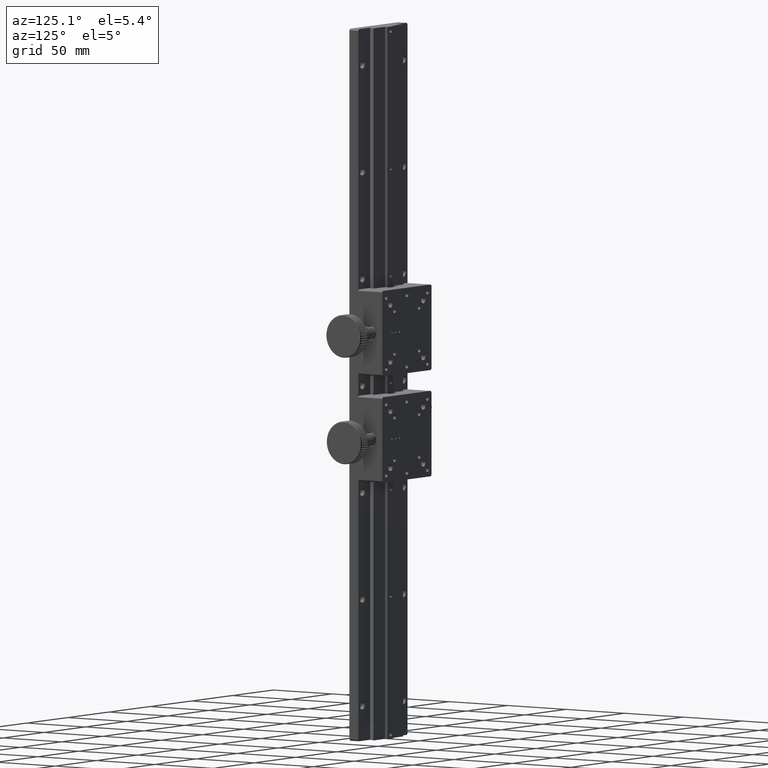
[diagram: clean part render]
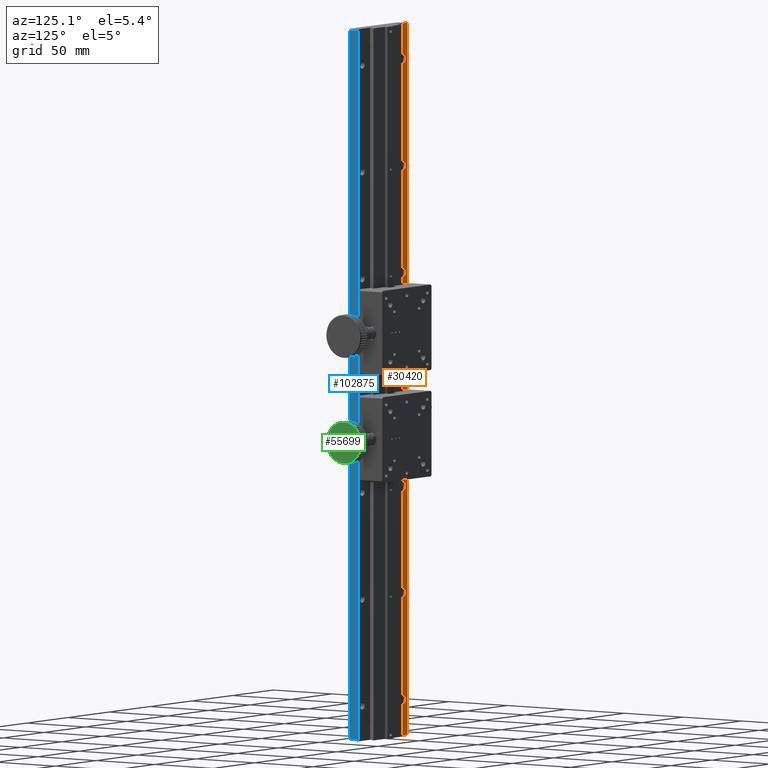
[diagram: same view with three faces highlighted in distinct colors, each labeled with its STEP entity id]
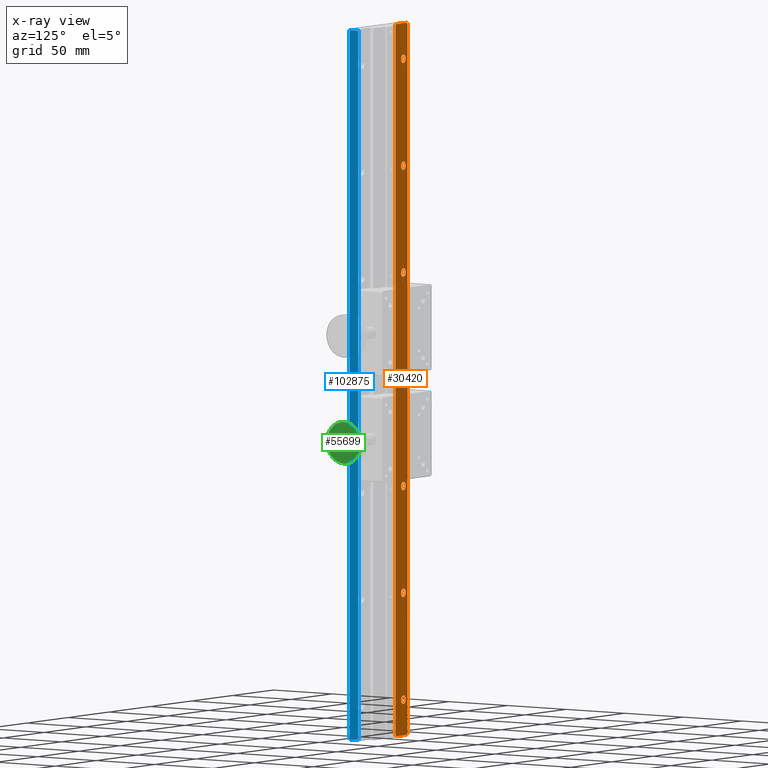
[diagram: x-ray of the same camera — body ghosted, the three highlighted faces saturated]
A machine part, auxiliary view with three faces highlighted in distinct colors.
The next image is the same camera in x-ray (body ghosted, the three faces saturated) — at least one of them is partly hidden behind the body in this view.
Their STEP definitions:

[orange] entity #30420 — the highlighted planar face has unit normal (0, -1, 0).
#2819 = CARTESIAN_POINT ( 'NONE',  ( 49.00156960994748800, 64.60272800986757602, 513.8231807833473113 ) ) ;
#3503 = CARTESIAN_POINT ( 'NONE',  ( 36.50156960994747379, 64.60272800986749075, 113.8231807833472544 ) ) ;
#4697 = ORIENTED_EDGE ( 'NONE', *, *, #169162, .T. ) ;
#5072 = EDGE_CURVE ( 'NONE', #186671, #186671, #182151, .T. ) ;
#9380 = CIRCLE ( 'NONE', #35490, 3.000000000000002665 ) ;
#10955 = CARTESIAN_POINT ( 'NONE',  ( 39.50156960994746669, 64.60272800986751918, 263.8231807833472544 ) ) ;
#12568 = DIRECTION ( 'NONE',  ( 1.000000000000000000, -0.000000000000000000, 0.000000000000000000 ) ) ;
#14750 = VERTEX_POINT ( 'NONE', #183852 ) ;
#16015 = DIRECTION ( 'NONE',  ( 1.000000000000000000, 7.222234881269275347E-15, 0.000000000000000000 ) ) ;
#18028 = CARTESIAN_POINT ( 'NONE',  ( 49.00156960994747379, 64.60272800986759023, 513.8231807833473113 ) ) ;
#18232 = VERTEX_POINT ( 'NONE', #74554 ) ;
#21140 = LINE ( 'NONE', #83574, #62835 ) ;
#21829 = DIRECTION ( 'NONE',  ( -6.982962677686266711E-15, 1.000000000000000000, 0.000000000000000000 ) ) ;
#23698 = CARTESIAN_POINT ( 'NONE',  ( 34.50156960994747379, 64.60272800986747654, 513.8231807833473113 ) ) ;
#25393 = EDGE_LOOP ( 'NONE', ( #29889 ) ) ;
#25883 = VERTEX_POINT ( 'NONE', #104660 ) ;
#26194 = DIRECTION ( 'NONE',  ( -0.7071067811865500152, -9.813077866772461680E-15, -0.7071067811865450192 ) ) ;
#26488 = CARTESIAN_POINT ( 'NONE',  ( 64.50156960994755195, 64.60272800986749075, 13.82318078334728284 ) ) ;
#26496 = VECTOR ( 'NONE', #12568, 1000.000000000000000 ) ;
#27779 = EDGE_CURVE ( 'NONE', #14750, #90267, #37035, .T. ) ;
#28495 = AXIS2_PLACEMENT_3D ( 'NONE', #10955, #42652, #73371 ) ;
#29158 = CARTESIAN_POINT ( 'NONE',  ( 39.50156960994745958, 64.60272800986751918, 488.8231807833473113 ) ) ;
#29889 = ORIENTED_EDGE ( 'NONE', *, *, #36648, .F. ) ;
#30353 = FACE_BOUND ( 'NONE', #122004, .T. ) ;
#30420 = ADVANCED_FACE ( 'NONE', ( #108121, #95769, #170562, #158206, #187879, #202241, #30353, #62089 ), #124493, .F. ) ;
#31597 = VECTOR ( 'NONE', #160873, 1000.000000000000000 ) ;
#32587 = CIRCLE ( 'NONE', #94655, 3.000000000000002665 ) ;
#35490 = AXIS2_PLACEMENT_3D ( 'NONE', #92601, #120287, #91593 ) ;
#36648 = EDGE_CURVE ( 'NONE', #100608, #100608, #9380, .T. ) ;
#37035 = LINE ( 'NONE', #23698, #31597 ) ;
#38216 = DIRECTION ( 'NONE',  ( -1.000000000000000000, -9.251858538542962756E-15, 0.000000000000000000 ) ) ;
#42508 = EDGE_CURVE ( 'NONE', #25883, #25883, #32587, .T. ) ;
#42652 = DIRECTION ( 'NONE',  ( -6.982962677686266711E-15, 1.000000000000000000, 0.000000000000000000 ) ) ;
#42730 = EDGE_LOOP ( 'NONE', ( #198058 ) ) ;
#44819 = CARTESIAN_POINT ( 'NONE',  ( 39.50156960994747379, 64.60272800986751918, 188.8231807833472544 ) ) ;
#46725 = DIRECTION ( 'NONE',  ( 7.222234881269275347E-15, -1.000000000000000000, 0.000000000000000000 ) ) ;
#47542 = DIRECTION ( 'NONE',  ( -1.000000000000000000, -9.251858538542962756E-15, 0.000000000000000000 ) ) ;
#49928 = ORIENTED_EDGE ( 'NONE', *, *, #27779, .T. ) ;
#53527 = CARTESIAN_POINT ( 'NONE',  ( 49.00156960994747379, 64.60272800986759023, 513.8231807833473113 ) ) ;
#54695 = AXIS2_PLACEMENT_3D ( 'NONE', #18028, #46725, #16015 ) ;
#54854 = ORIENTED_EDGE ( 'NONE', *, *, #111850, .F. ) ;
#56610 = CARTESIAN_POINT ( 'NONE',  ( 64.50156960994755195, 64.60272800986749075, 513.8231807833473113 ) ) ;
#59250 = EDGE_LOOP ( 'NONE', ( #129438 ) ) ;
#62089 = FACE_BOUND ( 'NONE', #25393, .T. ) ;
#62191 = DIRECTION ( 'NONE',  ( -6.982962677686266711E-15, 1.000000000000000000, 0.000000000000000000 ) ) ;
#62643 = VERTEX_POINT ( 'NONE', #125051 ) ;
#62835 = VECTOR ( 'NONE', #26194, 1000.000000000000000 ) ;
#64920 = VERTEX_POINT ( 'NONE', #202069 ) ;
#65790 = AXIS2_PLACEMENT_3D ( 'NONE', #129299, #21829, #38216 ) ;
#66332 = CIRCLE ( 'NONE', #125183, 3.000000000000002665 ) ;
#66684 = EDGE_CURVE ( 'NONE', #18232, #188434, #166694, .T. ) ;
#69300 = VECTOR ( 'NONE', #85212, 1000.000000000000000 ) ;
#70894 = CARTESIAN_POINT ( 'NONE',  ( 49.00156960994748800, 64.60272800986757602, 13.82318078334727041 ) ) ;
#71895 = EDGE_LOOP ( 'NONE', ( #128770 ) ) ;
#72918 = LINE ( 'NONE', #53527, #69300 ) ;
#72964 = EDGE_CURVE ( 'NONE', #62643, #62643, #171210, .T. ) ;
#73371 = DIRECTION ( 'NONE',  ( -1.000000000000000000, -9.251858538542962756E-15, 0.000000000000000000 ) ) ;
#73740 = CARTESIAN_POINT ( 'NONE',  ( 34.50156960994748800, 64.60272800986747654, 512.8231807833471976 ) ) ;
#74554 = CARTESIAN_POINT ( 'NONE',  ( 35.50156960994750222, 64.60272800986749075, 13.82318078334728639 ) ) ;
#78465 = ORIENTED_EDGE ( 'NONE', *, *, #5072, .F. ) ;
#79246 = DIRECTION ( 'NONE',  ( -6.982962677686266711E-15, 1.000000000000000000, 0.000000000000000000 ) ) ;
#79701 = ORIENTED_EDGE ( 'NONE', *, *, #175727, .T. ) ;
#80976 = EDGE_LOOP ( 'NONE', ( #78465 ) ) ;
#83574 = CARTESIAN_POINT ( 'NONE',  ( 35.50156960994759459, 64.60272800986749075, 513.8231807833473113 ) ) ;
#83724 = ORIENTED_EDGE ( 'NONE', *, *, #168370, .F. ) ;
#84978 = ORIENTED_EDGE ( 'NONE', *, *, #66684, .F. ) ;
#85212 = DIRECTION ( 'NONE',  ( -0.000000000000000000, -0.000000000000000000, -1.000000000000000000 ) ) ;
#88308 = LINE ( 'NONE', #56610, #26496 ) ;
#89609 = ORIENTED_EDGE ( 'NONE', *, *, #42508, .F. ) ;
#90267 = VERTEX_POINT ( 'NONE', #73740 ) ;
#90820 = VERTEX_POINT ( 'NONE', #155502 ) ;
#91593 = DIRECTION ( 'NONE',  ( -1.000000000000000000, -9.251858538542962756E-15, 0.000000000000000000 ) ) ;
#92601 = CARTESIAN_POINT ( 'NONE',  ( 39.50156960994746669, 64.60272800986751918, 413.8231807833473681 ) ) ;
#94655 = AXIS2_PLACEMENT_3D ( 'NONE', #154289, #62191, #202346 ) ;
#95769 = FACE_BOUND ( 'NONE', #59250, .T. ) ;
#100090 = EDGE_LOOP ( 'NONE', ( #83724 ) ) ;
#100608 = VERTEX_POINT ( 'NONE', #194733 ) ;
#101914 = EDGE_CURVE ( 'NONE', #14750, #18232, #114933, .T. ) ;
#104660 = CARTESIAN_POINT ( 'NONE',  ( 36.50156960994746669, 64.60272800986749075, 338.8231807833472544 ) ) ;
#106223 = DIRECTION ( 'NONE',  ( -1.000000000000000000, -9.251858538542962756E-15, 0.000000000000000000 ) ) ;
#108121 = FACE_OUTER_BOUND ( 'NONE', #191592, .T. ) ;
#108151 = CIRCLE ( 'NONE', #137519, 2.999999999999995559 ) ;
#111850 = EDGE_CURVE ( 'NONE', #90820, #90267, #21140, .T. ) ;
#111892 = ORIENTED_EDGE ( 'NONE', *, *, #101914, .F. ) ;
#114933 = LINE ( 'NONE', #163047, #165090 ) ;
#116971 = DIRECTION ( 'NONE',  ( 0.7071067811865525687, 9.813077866773518753E-15, -0.7071067811865425767 ) ) ;
#117956 = EDGE_CURVE ( 'NONE', #189951, #189951, #66332, .T. ) ;
#120287 = DIRECTION ( 'NONE',  ( -6.982962677686266711E-15, 1.000000000000000000, 0.000000000000000000 ) ) ;
#122004 = EDGE_LOOP ( 'NONE', ( #89609 ) ) ;
#124493 = PLANE ( 'NONE',  #54695 ) ;
#125051 = CARTESIAN_POINT ( 'NONE',  ( 36.50156960994747379, 64.60272800986749075, 188.8231807833472544 ) ) ;
#125183 = AXIS2_PLACEMENT_3D ( 'NONE', #29158, #79246, #47542 ) ;
#126291 = CARTESIAN_POINT ( 'NONE',  ( 36.50156960994746669, 64.60272800986749075, 263.8231807833472544 ) ) ;
#128770 = ORIENTED_EDGE ( 'NONE', *, *, #165817, .F. ) ;
#129299 = CARTESIAN_POINT ( 'NONE',  ( 39.50156960994747379, 64.60272800986751918, 113.8231807833472544 ) ) ;
#129438 = ORIENTED_EDGE ( 'NONE', *, *, #117956, .F. ) ;
#137519 = AXIS2_PLACEMENT_3D ( 'NONE', #138127, #200528, #187165 ) ;
#138127 = CARTESIAN_POINT ( 'NONE',  ( 39.50156960994747379, 64.60272800986751918, 38.82318078334728284 ) ) ;
#143899 = CARTESIAN_POINT ( 'NONE',  ( 36.50156960994745958, 64.60272800986749075, 488.8231807833473113 ) ) ;
#154289 = CARTESIAN_POINT ( 'NONE',  ( 39.50156960994746669, 64.60272800986751918, 338.8231807833472544 ) ) ;
#154347 = DIRECTION ( 'NONE',  ( 1.000000000000000000, -0.000000000000000000, 0.000000000000000000 ) ) ;
#155502 = CARTESIAN_POINT ( 'NONE',  ( 35.50156960994760169, 64.60272800986749075, 513.8231807833473113 ) ) ;
#156296 = DIRECTION ( 'NONE',  ( -6.982962677686266711E-15, 1.000000000000000000, 0.000000000000000000 ) ) ;
#158206 = FACE_BOUND ( 'NONE', #100090, .T. ) ;
#159727 = VECTOR ( 'NONE', #154347, 1000.000000000000000 ) ;
#160873 = DIRECTION ( 'NONE',  ( 0.000000000000000000, 0.000000000000000000, 1.000000000000000000 ) ) ;
#163047 = CARTESIAN_POINT ( 'NONE',  ( 34.50156960994747379, 64.60272800986747654, 14.82318078334732192 ) ) ;
#165090 = VECTOR ( 'NONE', #116971, 999.9999999999998863 ) ;
#165817 = EDGE_CURVE ( 'NONE', #64920, #64920, #108151, .T. ) ;
#166694 = LINE ( 'NONE', #26488, #159727 ) ;
#168370 = EDGE_CURVE ( 'NONE', #187706, #187706, #183370, .T. ) ;
#169162 = EDGE_CURVE ( 'NONE', #90820, #182317, #88308, .T. ) ;
#170562 = FACE_BOUND ( 'NONE', #71895, .T. ) ;
#171210 = CIRCLE ( 'NONE', #187524, 3.000000000000002665 ) ;
#175727 = EDGE_CURVE ( 'NONE', #182317, #188434, #72918, .T. ) ;
#182151 = CIRCLE ( 'NONE', #28495, 3.000000000000002665 ) ;
#182317 = VERTEX_POINT ( 'NONE', #2819 ) ;
#183370 = CIRCLE ( 'NONE', #65790, 3.000000000000002665 ) ;
#183852 = CARTESIAN_POINT ( 'NONE',  ( 34.50156960994750932, 64.60272800986747654, 14.82318078334725264 ) ) ;
#186671 = VERTEX_POINT ( 'NONE', #126291 ) ;
#187165 = DIRECTION ( 'NONE',  ( -1.000000000000000000, -9.251858538542984844E-15, 0.000000000000000000 ) ) ;
#187524 = AXIS2_PLACEMENT_3D ( 'NONE', #44819, #156296, #106223 ) ;
#187706 = VERTEX_POINT ( 'NONE', #3503 ) ;
#187879 = FACE_BOUND ( 'NONE', #42730, .T. ) ;
#188434 = VERTEX_POINT ( 'NONE', #70894 ) ;
#189951 = VERTEX_POINT ( 'NONE', #143899 ) ;
#191592 = EDGE_LOOP ( 'NONE', ( #111892, #49928, #54854, #4697, #79701, #84978 ) ) ;
#194733 = CARTESIAN_POINT ( 'NONE',  ( 36.50156960994746669, 64.60272800986749075, 413.8231807833473681 ) ) ;
#198058 = ORIENTED_EDGE ( 'NONE', *, *, #72964, .F. ) ;
#200528 = DIRECTION ( 'NONE',  ( -6.982962677686266711E-15, 1.000000000000000000, 0.000000000000000000 ) ) ;
#202069 = CARTESIAN_POINT ( 'NONE',  ( 36.50156960994748090, 64.60272800986749075, 38.82318078334728284 ) ) ;
#202241 = FACE_BOUND ( 'NONE', #80976, .T. ) ;
#202346 = DIRECTION ( 'NONE',  ( -1.000000000000000000, -9.251858538542962756E-15, 0.000000000000000000 ) ) ;

[blue] entity #102875 — the highlighted planar face has unit normal (-1, -0, 0).
#1765 = CARTESIAN_POINT ( 'NONE',  ( 94.50156960994749511, 64.60272800986791708, 263.9731807833472317 ) ) ;
#3088 = CARTESIAN_POINT ( 'NONE',  ( 94.50156960994752353, 60.10272800986790998, 263.9731807833472317 ) ) ;
#6110 = VERTEX_POINT ( 'NONE', #24956 ) ;
#6519 = CARTESIAN_POINT ( 'NONE',  ( 94.50156960994749511, 64.60272800986791708, 513.8231807833473113 ) ) ;
#6866 = CARTESIAN_POINT ( 'NONE',  ( 94.50156960994752353, 60.10272800986790998, 513.8231807833473113 ) ) ;
#7758 = DIRECTION ( 'NONE',  ( -6.982962677686266711E-15, 1.000000000000000000, -0.000000000000000000 ) ) ;
#8067 = VECTOR ( 'NONE', #7758, 1000.000000000000000 ) ;
#8414 = CARTESIAN_POINT ( 'NONE',  ( 94.50156960994752353, 57.10272800986790998, 512.8231807833471976 ) ) ;
#10011 = VERTEX_POINT ( 'NONE', #3088 ) ;
#19820 = EDGE_CURVE ( 'NONE', #132543, #6110, #57961, .T. ) ;
#22982 = VERTEX_POINT ( 'NONE', #8414 ) ;
#23226 = VECTOR ( 'NONE', #96856, 1000.000000000000000 ) ;
#24956 = CARTESIAN_POINT ( 'NONE',  ( 94.50156960994750932, 64.60272800986791708, 263.9731807833472317 ) ) ;
#25483 = VERTEX_POINT ( 'NONE', #167561 ) ;
#33964 = EDGE_CURVE ( 'NONE', #81610, #35056, #98862, .T. ) ;
#34521 = DIRECTION ( 'NONE',  ( 0.000000000000000000, -0.000000000000000000, -1.000000000000000000 ) ) ;
#35056 = VERTEX_POINT ( 'NONE', #124083 ) ;
#35862 = LINE ( 'NONE', #97251, #131454 ) ;
#45713 = DIRECTION ( 'NONE',  ( -6.982962677686266711E-15, 1.000000000000000000, -0.000000000000000000 ) ) ;
#47342 = VECTOR ( 'NONE', #53597, 1000.000000000000000 ) ;
#47827 = DIRECTION ( 'NONE',  ( 6.982962677686266711E-15, -1.000000000000000000, 0.000000000000000000 ) ) ;
#51235 = ORIENTED_EDGE ( 'NONE', *, *, #33964, .F. ) ;
#53597 = DIRECTION ( 'NONE',  ( 0.000000000000000000, -0.000000000000000000, -1.000000000000000000 ) ) ;
#54831 = CARTESIAN_POINT ( 'NONE',  ( 94.50156960994749511, 64.60272800986791708, 512.8231807833471976 ) ) ;
#56603 = PLANE ( 'NONE',  #76855 ) ;
#57371 = ORIENTED_EDGE ( 'NONE', *, *, #185764, .F. ) ;
#57739 = CARTESIAN_POINT ( 'NONE',  ( 94.50156960994749511, 64.60272800986791708, 263.6731807833472203 ) ) ;
#57961 = LINE ( 'NONE', #75319, #133377 ) ;
#59634 = DIRECTION ( 'NONE',  ( 6.982962677686266711E-15, -1.000000000000000000, 0.000000000000000000 ) ) ;
#62079 = LINE ( 'NONE', #108110, #138091 ) ;
#70289 = LINE ( 'NONE', #6866, #112324 ) ;
#75319 = CARTESIAN_POINT ( 'NONE',  ( 94.50156960994749511, 64.60272800986791708, 513.8231807833473113 ) ) ;
#76855 = AXIS2_PLACEMENT_3D ( 'NONE', #149691, #138386, #59634 ) ;
#79532 = LINE ( 'NONE', #1765, #181151 ) ;
#81610 = VERTEX_POINT ( 'NONE', #97531 ) ;
#85671 = EDGE_CURVE ( 'NONE', #22982, #132543, #195985, .T. ) ;
#93761 = EDGE_CURVE ( 'NONE', #10011, #25483, #70289, .T. ) ;
#96856 = DIRECTION ( 'NONE',  ( 6.982962677686266711E-15, -1.000000000000000000, 0.000000000000000000 ) ) ;
#97251 = CARTESIAN_POINT ( 'NONE',  ( 94.50156960994752353, 57.10272800986790998, 513.8231807833473113 ) ) ;
#97531 = CARTESIAN_POINT ( 'NONE',  ( 94.50156960994749511, 64.60272800986791708, 14.82318078334733968 ) ) ;
#98068 = ORIENTED_EDGE ( 'NONE', *, *, #85671, .F. ) ;
#98262 = DIRECTION ( 'NONE',  ( -0.000000000000000000, -0.000000000000000000, -1.000000000000000000 ) ) ;
#98862 = LINE ( 'NONE', #157285, #23226 ) ;
#99126 = EDGE_CURVE ( 'NONE', #193913, #81610, #99613, .T. ) ;
#99613 = LINE ( 'NONE', #6519, #47342 ) ;
#102875 = ADVANCED_FACE ( 'NONE', ( #105665 ), #56603, .F. ) ;
#105665 = FACE_OUTER_BOUND ( 'NONE', #108657, .T. ) ;
#108110 = CARTESIAN_POINT ( 'NONE',  ( 94.50156960994749511, 64.60272800986791708, 263.6731807833472203 ) ) ;
#108657 = EDGE_LOOP ( 'NONE', ( #57371, #150860, #146350, #193650, #98068, #165996, #51235, #185372 ) ) ;
#112324 = VECTOR ( 'NONE', #34521, 1000.000000000000000 ) ;
#112990 = EDGE_CURVE ( 'NONE', #22982, #35056, #35862, .T. ) ;
#122375 = DIRECTION ( 'NONE',  ( 0.000000000000000000, -0.000000000000000000, -1.000000000000000000 ) ) ;
#124083 = CARTESIAN_POINT ( 'NONE',  ( 94.50156960994752353, 57.10272800986790287, 14.82318078334727396 ) ) ;
#131454 = VECTOR ( 'NONE', #98262, 1000.000000000000000 ) ;
#132543 = VERTEX_POINT ( 'NONE', #192099 ) ;
#133377 = VECTOR ( 'NONE', #122375, 1000.000000000000000 ) ;
#138091 = VECTOR ( 'NONE', #45713, 1000.000000000000000 ) ;
#138386 = DIRECTION ( 'NONE',  ( -1.000000000000000000, -6.982962677686266711E-15, 0.000000000000000000 ) ) ;
#146350 = ORIENTED_EDGE ( 'NONE', *, *, #198266, .F. ) ;
#149691 = CARTESIAN_POINT ( 'NONE',  ( 94.50156960994749511, 64.60272800986791708, 513.8231807833473113 ) ) ;
#150860 = ORIENTED_EDGE ( 'NONE', *, *, #93761, .F. ) ;
#157285 = CARTESIAN_POINT ( 'NONE',  ( 94.50156960994749511, 64.60272800986791708, 14.82318078334732192 ) ) ;
#165996 = ORIENTED_EDGE ( 'NONE', *, *, #112990, .T. ) ;
#167561 = CARTESIAN_POINT ( 'NONE',  ( 94.50156960994752353, 60.10272800986790998, 263.6731807833472203 ) ) ;
#181151 = VECTOR ( 'NONE', #47827, 1000.000000000000000 ) ;
#185372 = ORIENTED_EDGE ( 'NONE', *, *, #99126, .F. ) ;
#185764 = EDGE_CURVE ( 'NONE', #25483, #193913, #62079, .T. ) ;
#192099 = CARTESIAN_POINT ( 'NONE',  ( 94.50156960994749511, 64.60272800986791708, 512.8231807833471976 ) ) ;
#193650 = ORIENTED_EDGE ( 'NONE', *, *, #19820, .F. ) ;
#193913 = VERTEX_POINT ( 'NONE', #57739 ) ;
#195985 = LINE ( 'NONE', #54831, #8067 ) ;
#198266 = EDGE_CURVE ( 'NONE', #6110, #10011, #79532, .T. ) ;

[green] entity #55699 — the highlighted planar face has unit normal (-1, 0, 0).
#158 = VERTEX_POINT ( 'NONE', #112832 ) ;
#201 = CARTESIAN_POINT ( 'NONE',  ( 126.9015696099511388, 88.79528928736395699, 231.5493539217077910 ) ) ;
#217 = CIRCLE ( 'NONE', #85216, 14.49999999999999822 ) ;
#282 = EDGE_CURVE ( 'NONE', #166472, #129989, #114465, .T. ) ;
#1010 = DIRECTION ( 'NONE',  ( -1.000000000000000000, 5.732958497158753929E-14, 6.753182598414590880E-15 ) ) ;
#3174 = EDGE_CURVE ( 'NONE', #33391, #118165, #55934, .T. ) ;
#3752 = VERTEX_POINT ( 'NONE', #35152 ) ;
#3842 = AXIS2_PLACEMENT_3D ( 'NONE', #44512, #9287, #33157 ) ;
#4657 = DIRECTION ( 'NONE',  ( -5.742532885992189612E-14, -1.000000000000000000, 0.000000000000000000 ) ) ;
#5063 = CARTESIAN_POINT ( 'NONE',  ( 126.9015696099499735, 67.46226522042978502, 238.7615722586857032 ) ) ;
#5613 = DIRECTION ( 'NONE',  ( -1.000000000000000000, 5.732958497158753929E-14, 6.753182598414590880E-15 ) ) ;
#6720 = VERTEX_POINT ( 'NONE', #151830 ) ;
#7393 = DIRECTION ( 'NONE',  ( -1.000000000000000000, 5.732958497158753929E-14, 6.753182598414590880E-15 ) ) ;
#7448 = CARTESIAN_POINT ( 'NONE',  ( 126.9015696099503288, 75.20270420091914332, 226.5004302079091758 ) ) ;
#7516 = ORIENTED_EDGE ( 'NONE', *, *, #81593, .F. ) ;
#8049 = EDGE_CURVE ( 'NONE', #6720, #33391, #9341, .T. ) ;
#8487 = CARTESIAN_POINT ( 'NONE',  ( 126.9015696099506414, 82.20319114051488896, 213.8022735460723993 ) ) ;
#8781 = EDGE_CURVE ( 'NONE', #123722, #55088, #140079, .T. ) ;
#9287 = DIRECTION ( 'NONE',  ( -1.000000000000000000, 5.732958497158753929E-14, 6.753182598414590880E-15 ) ) ;
#9341 = CIRCLE ( 'NONE', #77986, 14.49999999999999822 ) ;
#9390 = CARTESIAN_POINT ( 'NONE',  ( 126.9015696099503288, 75.20270420091914332, 226.5004302079091758 ) ) ;
#9761 = DIRECTION ( 'NONE',  ( -5.742532885992189612E-14, -1.000000000000000000, 0.000000000000000000 ) ) ;
#10273 = AXIS2_PLACEMENT_3D ( 'NONE', #49665, #113050, #93681 ) ;
#10294 = AXIS2_PLACEMENT_3D ( 'NONE', #165305, #181629, #9761 ) ;
#10400 = FACE_OUTER_BOUND ( 'NONE', #107671, .T. ) ;
#10479 = CARTESIAN_POINT ( 'NONE',  ( 126.9015696099503288, 75.20270420091914332, 226.5004302079091758 ) ) ;
#11548 = ORIENTED_EDGE ( 'NONE', *, *, #170020, .F. ) ;
#11865 = AXIS2_PLACEMENT_3D ( 'NONE', #97589, #163075, #178415 ) ;
#12274 = CARTESIAN_POINT ( 'NONE',  ( 126.9015696099503288, 75.20270420091914332, 226.5004302079091758 ) ) ;
#12311 = ORIENTED_EDGE ( 'NONE', *, *, #24297, .F. ) ;
#13871 = AXIS2_PLACEMENT_3D ( 'NONE', #188880, #109129, #110129 ) ;
#15769 = ORIENTED_EDGE ( 'NONE', *, *, #93475, .F. ) ;
#15815 = CIRCLE ( 'NONE', #107408, 14.49999999999999822 ) ;
#16522 = VERTEX_POINT ( 'NONE', #178309 ) ;
#17418 = CARTESIAN_POINT ( 'NONE',  ( 126.9015696099503288, 75.20270420091914332, 226.5004302079091758 ) ) ;
#18213 = CARTESIAN_POINT ( 'NONE',  ( 126.9015696099496040, 63.67731480042549208, 217.7018280935396604 ) ) ;
#18659 = CARTESIAN_POINT ( 'NONE',  ( 126.9015696099503572, 77.34357937895508428, 212.1593474917377762 ) ) ;
#19966 = ORIENTED_EDGE ( 'NONE', *, *, #130642, .F. ) ;
#20825 = CARTESIAN_POINT ( 'NONE',  ( 126.9015696099504709, 79.02471810892056681, 212.5132142702379383 ) ) ;
#20982 = EDGE_CURVE ( 'NONE', #95060, #123722, #87686, .T. ) ;
#21076 = DIRECTION ( 'NONE',  ( -1.000000000000000000, 5.732958497158753929E-14, 6.753182598414590880E-15 ) ) ;
#21614 = EDGE_CURVE ( 'NONE', #59147, #57344, #15815, .T. ) ;
#21882 = DIRECTION ( 'NONE',  ( -5.742532885992189612E-14, -1.000000000000000000, 0.000000000000000000 ) ) ;
#22663 = AXIS2_PLACEMENT_3D ( 'NONE', #189781, #190784, #64992 ) ;
#22689 = DIRECTION ( 'NONE',  ( -5.742532885992189612E-14, -1.000000000000000000, 0.000000000000000000 ) ) ;
#23635 = AXIS2_PLACEMENT_3D ( 'NONE', #63152, #78496, #187940 ) ;
#23780 = DIRECTION ( 'NONE',  ( -1.000000000000000000, 5.732958497158753929E-14, 6.753182598414590880E-15 ) ) ;
#24297 = EDGE_CURVE ( 'NONE', #65300, #39182, #71025, .T. ) ;
#24397 = AXIS2_PLACEMENT_3D ( 'NONE', #59570, #60573, #107606 ) ;
#25009 = VERTEX_POINT ( 'NONE', #102078 ) ;
#25620 = ORIENTED_EDGE ( 'NONE', *, *, #96152, .F. ) ;
#25837 = DIRECTION ( 'NONE',  ( -1.000000000000000000, 5.732958497158753929E-14, 6.753182598414590880E-15 ) ) ;
#26159 = ORIENTED_EDGE ( 'NONE', *, *, #51260, .F. ) ;
#26242 = CARTESIAN_POINT ( 'NONE',  ( 126.9015696099503288, 75.20270420091914332, 226.5004302079091758 ) ) ;
#26402 = ORIENTED_EDGE ( 'NONE', *, *, #162381, .F. ) ;
#26718 = CARTESIAN_POINT ( 'NONE',  ( 126.9015696099503288, 75.20270420091914332, 226.5004302079091758 ) ) ;
#26728 = CARTESIAN_POINT ( 'NONE',  ( 126.9015696099503288, 75.20270420091914332, 226.5004302079091758 ) ) ;
#26740 = CIRCLE ( 'NONE', #134545, 14.49999999999999822 ) ;
#26746 = DIRECTION ( 'NONE',  ( -1.000000000000000000, 5.732958497158753929E-14, 6.753182598414590880E-15 ) ) ;
#26780 = DIRECTION ( 'NONE',  ( -1.000000000000000000, 5.732958497158753929E-14, 6.753182598414590880E-15 ) ) ;
#27834 = VERTEX_POINT ( 'NONE', #161891 ) ;
#27927 = CARTESIAN_POINT ( 'NONE',  ( 126.9015696099501724, 73.91516371873655089, 212.0577074899885304 ) ) ;
#28537 = ORIENTED_EDGE ( 'NONE', *, *, #106893, .F. ) ;
#28614 = DIRECTION ( 'NONE',  ( -1.000000000000000000, 5.732958497158753929E-14, 6.753182598414590880E-15 ) ) ;
#28767 = DIRECTION ( 'NONE',  ( -1.000000000000000000, 5.732958497158753929E-14, 6.753182598414590880E-15 ) ) ;
#29183 = EDGE_CURVE ( 'NONE', #46490, #120400, #155910, .T. ) ;
#29419 = DIRECTION ( 'NONE',  ( -5.742532885992189612E-14, -1.000000000000000000, 0.000000000000000000 ) ) ;
#29937 = CARTESIAN_POINT ( 'NONE',  ( 126.9015696099495329, 60.93136082067898940, 229.0653391971865744 ) ) ;
#29939 = CIRCLE ( 'NONE', #124774, 14.49999999999999822 ) ;
#29973 = CIRCLE ( 'NONE', #3842, 14.49999999999999822 ) ;
#30055 = VERTEX_POINT ( 'NONE', #79443 ) ;
#30787 = CARTESIAN_POINT ( 'NONE',  ( 126.9015696099503288, 75.20270420091914332, 226.5004302079091758 ) ) ;
#31082 = ORIENTED_EDGE ( 'NONE', *, *, #29183, .F. ) ;
#32848 = EDGE_CURVE ( 'NONE', #27834, #76685, #144003, .T. ) ;
#33107 = ORIENTED_EDGE ( 'NONE', *, *, #282, .F. ) ;
#33157 = DIRECTION ( 'NONE',  ( -5.742532885992189612E-14, -1.000000000000000000, 0.000000000000000000 ) ) ;
#33391 = VERTEX_POINT ( 'NONE', #64176 ) ;
#33709 = AXIS2_PLACEMENT_3D ( 'NONE', #187945, #110189, #29419 ) ;
#34149 = DIRECTION ( 'NONE',  ( -5.742532885992189612E-14, -1.000000000000000000, 0.000000000000000000 ) ) ;
#34430 = CARTESIAN_POINT ( 'NONE',  ( 126.9015696099495045, 61.33488992890952574, 222.2656070336731204 ) ) ;
#34524 = DIRECTION ( 'NONE',  ( -5.742532885992189612E-14, -1.000000000000000000, 0.000000000000000000 ) ) ;
#34694 = ORIENTED_EDGE ( 'NONE', *, *, #176652, .F. ) ;
#34705 = CARTESIAN_POINT ( 'NONE',  ( 126.9015696099503288, 75.20270420091914332, 226.5004302079091758 ) ) ;
#35152 = CARTESIAN_POINT ( 'NONE',  ( 126.9015696099495756, 61.33488992890961811, 230.7352533821454585 ) ) ;
#35412 = CARTESIAN_POINT ( 'NONE',  ( 126.9015696099503288, 75.20270420091914332, 226.5004302079091758 ) ) ;
#35520 = CARTESIAN_POINT ( 'NONE',  ( 126.9015696099503288, 75.20270420091914332, 226.5004302079091758 ) ) ;
#36219 = VERTEX_POINT ( 'NONE', #18213 ) ;
#36376 = CIRCLE ( 'NONE', #42985, 14.49999999999999822 ) ;
#36402 = CIRCLE ( 'NONE', #10294, 14.49999999999999822 ) ;
#36532 = CIRCLE ( 'NONE', #128102, 14.49999999999999822 ) ;
#38464 = DIRECTION ( 'NONE',  ( -1.000000000000000000, 5.732958497158753929E-14, 6.753182598414590880E-15 ) ) ;
#38811 = DIRECTION ( 'NONE',  ( -1.000000000000000000, 5.732958497158753929E-14, 6.753182598414590880E-15 ) ) ;
#39182 = VERTEX_POINT ( 'NONE', #29937 ) ;
#39324 = EDGE_CURVE ( 'NONE', #168604, #107390, #127077, .T. ) ;
#39338 = DIRECTION ( 'NONE',  ( -5.742532885992189612E-14, -1.000000000000000000, 0.000000000000000000 ) ) ;
#39780 = AXIS2_PLACEMENT_3D ( 'NONE', #106916, #47533, #59883 ) ;
#40081 = CARTESIAN_POINT ( 'NONE',  ( 126.9015696099503288, 75.20270420091914332, 226.5004302079091758 ) ) ;
#40468 = AXIS2_PLACEMENT_3D ( 'NONE', #163269, #145846, #190887 ) ;
#41050 = CIRCLE ( 'NONE', #155443, 14.49999999999999822 ) ;
#41434 = AXIS2_PLACEMENT_3D ( 'NONE', #17418, #95157, #64484 ) ;
#41981 = CIRCLE ( 'NONE', #185677, 14.49999999999999822 ) ;
#42281 = CIRCLE ( 'NONE', #140271, 14.49999999999999822 ) ;
#42985 = AXIS2_PLACEMENT_3D ( 'NONE', #7448, #69861, #132257 ) ;
#43137 = AXIS2_PLACEMENT_3D ( 'NONE', #26242, #147017, #163420 ) ;
#44409 = ORIENTED_EDGE ( 'NONE', *, *, #39324, .F. ) ;
#44512 = CARTESIAN_POINT ( 'NONE',  ( 126.9015696099503288, 75.20270420091914332, 226.5004302079091758 ) ) ;
#44742 = CARTESIAN_POINT ( 'NONE',  ( 126.9015696099511388, 88.10273202034305484, 233.1215541501178734 ) ) ;
#45659 = ORIENTED_EDGE ( 'NONE', *, *, #105400, .F. ) ;
#45948 = CIRCLE ( 'NONE', #160283, 14.49999999999999822 ) ;
#46071 = AXIS2_PLACEMENT_3D ( 'NONE', #67152, #38464, #113174 ) ;
#46139 = CARTESIAN_POINT ( 'NONE',  ( 126.9015696099503288, 75.20270420091914332, 226.5004302079091758 ) ) ;
#46156 = DIRECTION ( 'NONE',  ( -1.000000000000000000, 5.732958497158753929E-14, 6.753182598414590880E-15 ) ) ;
#46470 = VERTEX_POINT ( 'NONE', #114602 ) ;
#46490 = VERTEX_POINT ( 'NONE', #148349 ) ;
#46813 = VERTEX_POINT ( 'NONE', #136046 ) ;
#47074 = DIRECTION ( 'NONE',  ( -5.742532885992189612E-14, -1.000000000000000000, 0.000000000000000000 ) ) ;
#47533 = DIRECTION ( 'NONE',  ( -1.000000000000000000, 5.732958497158753929E-14, 6.753182598414590880E-15 ) ) ;
#47677 = ORIENTED_EDGE ( 'NONE', *, *, #81480, .F. ) ;
#47727 = DIRECTION ( 'NONE',  ( -5.742532885992189612E-14, -1.000000000000000000, 0.000000000000000000 ) ) ;
#47920 = VERTEX_POINT ( 'NONE', #5063 ) ;
#48247 = CARTESIAN_POINT ( 'NONE',  ( 126.9015696099509114, 86.18661721226261818, 217.0345094941465618 ) ) ;
#49665 = CARTESIAN_POINT ( 'NONE',  ( 126.9015696099503288, 75.20270420091914332, 226.5004302079091758 ) ) ;
#49746 = CARTESIAN_POINT ( 'NONE',  ( 126.9015696099498030, 64.79884897377644393, 236.6004201293227140 ) ) ;
#51260 = EDGE_CURVE ( 'NONE', #158, #166472, #42281, .T. ) ;
#51505 = DIRECTION ( 'NONE',  ( -5.742532885992189612E-14, -1.000000000000000000, 0.000000000000000000 ) ) ;
#51698 = EDGE_CURVE ( 'NONE', #72647, #125760, #189320, .T. ) ;
#51788 = DIRECTION ( 'NONE',  ( -1.000000000000000000, 5.732958497158753929E-14, 6.753182598414590880E-15 ) ) ;
#52298 = DIRECTION ( 'NONE',  ( -5.742532885992189612E-14, -1.000000000000000000, 0.000000000000000000 ) ) ;
#52424 = CARTESIAN_POINT ( 'NONE',  ( 126.9015696099503288, 75.20270420091914332, 226.5004302079091758 ) ) ;
#52887 = CIRCLE ( 'NONE', #150910, 14.49999999999999822 ) ;
#52916 = AXIS2_PLACEMENT_3D ( 'NONE', #141980, #145995, #34524 ) ;
#53253 = CARTESIAN_POINT ( 'NONE',  ( 126.9015696099498882, 66.06643046898442151, 237.7600262173208989 ) ) ;
#53448 = DIRECTION ( 'NONE',  ( -1.000000000000000000, 5.732958497158753929E-14, 6.753182598414590880E-15 ) ) ;
#54439 = DIRECTION ( 'NONE',  ( -1.000000000000000000, 5.732958497158753929E-14, 6.753182598414590880E-15 ) ) ;
#54467 = DIRECTION ( 'NONE',  ( -5.742532885992189612E-14, -1.000000000000000000, 0.000000000000000000 ) ) ;
#55088 = VERTEX_POINT ( 'NONE', #18659 ) ;
#55426 = DIRECTION ( 'NONE',  ( -1.000000000000000000, 5.732958497158753929E-14, 6.753182598414590880E-15 ) ) ;
#55699 = ADVANCED_FACE ( 'NONE', ( #10400 ), #199638, .F. ) ;
#55849 = AXIS2_PLACEMENT_3D ( 'NONE', #71465, #100114, #162561 ) ;
#55934 = CIRCLE ( 'NONE', #140908, 14.49999999999999822 ) ;
#56267 = AXIS2_PLACEMENT_3D ( 'NONE', #102375, #70692, #52298 ) ;
#56535 = DIRECTION ( 'NONE',  ( -5.742532885992189612E-14, -1.000000000000000000, 0.000000000000000000 ) ) ;
#57344 = VERTEX_POINT ( 'NONE', #62912 ) ;
#58193 = EDGE_CURVE ( 'NONE', #3752, #148846, #96826, .T. ) ;
#58485 = CARTESIAN_POINT ( 'NONE',  ( 126.9015696099503288, 75.20270420091912911, 226.5004302079091758 ) ) ;
#58598 = ORIENTED_EDGE ( 'NONE', *, *, #185889, .F. ) ;
#59147 = VERTEX_POINT ( 'NONE', #27927 ) ;
#59570 = CARTESIAN_POINT ( 'NONE',  ( 126.9015696099503288, 75.20270420091914332, 226.5004302079091758 ) ) ;
#59779 = VERTEX_POINT ( 'NONE', #154770 ) ;
#59883 = DIRECTION ( 'NONE',  ( -5.742532885992189612E-14, -1.000000000000000000, 0.000000000000000000 ) ) ;
#60067 = CIRCLE ( 'NONE', #13871, 14.49999999999999822 ) ;
#60499 = DIRECTION ( 'NONE',  ( -5.742532885992189612E-14, -1.000000000000000000, 0.000000000000000000 ) ) ;
#60573 = DIRECTION ( 'NONE',  ( -1.000000000000000000, 5.732958497158753929E-14, 6.753182598414590880E-15 ) ) ;
#60991 = DIRECTION ( 'NONE',  ( -5.742532885992189612E-14, -1.000000000000000000, 0.000000000000000000 ) ) ;
#61759 = EDGE_CURVE ( 'NONE', #176339, #25009, #194535, .T. ) ;
#62912 = CARTESIAN_POINT ( 'NONE',  ( 126.9015696099500587, 72.21601422917316881, 212.3113610695663453 ) ) ;
#63152 = CARTESIAN_POINT ( 'NONE',  ( 126.9015696099503288, 75.20270420091914332, 226.5004302079091758 ) ) ;
#64176 = CARTESIAN_POINT ( 'NONE',  ( 126.9015696099511672, 89.60093009311515289, 228.2153911862687607 ) ) ;
#64369 = EDGE_CURVE ( 'NONE', #129989, #16522, #41050, .T. ) ;
#64484 = DIRECTION ( 'NONE',  ( -5.742532885992189612E-14, -1.000000000000000000, 0.000000000000000000 ) ) ;
#64593 = CARTESIAN_POINT ( 'NONE',  ( 126.9015696099503288, 75.20270420091914332, 226.5004302079091758 ) ) ;
#64896 = EDGE_CURVE ( 'NONE', #78696, #113926, #191682, .T. ) ;
#64992 = DIRECTION ( 'NONE',  ( -5.742532885992189612E-14, -1.000000000000000000, 0.000000000000000000 ) ) ;
#65300 = VERTEX_POINT ( 'NONE', #140216 ) ;
#65872 = CARTESIAN_POINT ( 'NONE',  ( 126.9015696099495329, 61.93309275089532662, 220.6551404832336800 ) ) ;
#66081 = VERTEX_POINT ( 'NONE', #86893 ) ;
#67152 = CARTESIAN_POINT ( 'NONE',  ( 126.9015696099503288, 75.20270420091914332, 226.5004302079091758 ) ) ;
#69861 = DIRECTION ( 'NONE',  ( -1.000000000000000000, 5.732958497158753929E-14, 6.753182598414590880E-15 ) ) ;
#69883 = VERTEX_POINT ( 'NONE', #169237 ) ;
#70155 = CIRCLE ( 'NONE', #24397, 14.49999999999999822 ) ;
#70692 = DIRECTION ( 'NONE',  ( -1.000000000000000000, 5.732958497158753929E-14, 6.753182598414590880E-15 ) ) ;
#71025 = CIRCLE ( 'NONE', #185384, 14.49999999999999822 ) ;
#71465 = CARTESIAN_POINT ( 'NONE',  ( 126.9015696099503288, 75.20270420091914332, 226.5004302079091758 ) ) ;
#72647 = VERTEX_POINT ( 'NONE', #186840 ) ;
#73265 = ORIENTED_EDGE ( 'NONE', *, *, #32848, .F. ) ;
#73531 = CARTESIAN_POINT ( 'NONE',  ( 126.9015696099511672, 89.70270420091914332, 226.5004302079091758 ) ) ;
#73629 = CARTESIAN_POINT ( 'NONE',  ( 126.9015696099508830, 83.65590664807909604, 238.2814899389914558 ) ) ;
#73818 = DIRECTION ( 'NONE',  ( -5.742532885992189612E-14, -1.000000000000000000, 0.000000000000000000 ) ) ;
#73931 = VERTEX_POINT ( 'NONE', #97296 ) ;
#74687 = DIRECTION ( 'NONE',  ( -5.742532885992189612E-14, -1.000000000000000000, 0.000000000000000000 ) ) ;
#75976 = CARTESIAN_POINT ( 'NONE',  ( 126.9015696099496040, 61.93309275089539767, 232.3457199325848705 ) ) ;
#76379 = VERTEX_POINT ( 'NONE', #110363 ) ;
#76685 = VERTEX_POINT ( 'NONE', #143062 ) ;
#77712 = ORIENTED_EDGE ( 'NONE', *, *, #117989, .F. ) ;
#77986 = AXIS2_PLACEMENT_3D ( 'NONE', #9390, #193567, #178243 ) ;
#78388 = ORIENTED_EDGE ( 'NONE', *, *, #58193, .F. ) ;
#78496 = DIRECTION ( 'NONE',  ( -1.000000000000000000, 5.732958497158753929E-14, 6.753182598414590880E-15 ) ) ;
#78696 = VERTEX_POINT ( 'NONE', #91767 ) ;
#79394 = DIRECTION ( 'NONE',  ( -1.000000000000000000, 5.732958497158753929E-14, 6.753182598414590880E-15 ) ) ;
#79443 = CARTESIAN_POINT ( 'NONE',  ( 126.9015696099505561, 77.34357937895525481, 240.8415129240805186 ) ) ;
#79594 = AXIS2_PLACEMENT_3D ( 'NONE', #40081, #54439, #162892 ) ;
#79776 = CARTESIAN_POINT ( 'NONE',  ( 126.9015696099503288, 75.20270420091914332, 226.5004302079091758 ) ) ;
#80199 = CIRCLE ( 'NONE', #135714, 14.49999999999999822 ) ;
#81480 = EDGE_CURVE ( 'NONE', #69883, #153505, #80199, .T. ) ;
#81593 = EDGE_CURVE ( 'NONE', #55088, #66081, #99757, .T. ) ;
#82222 = DIRECTION ( 'NONE',  ( -1.000000000000000000, 5.732958497158753929E-14, 6.753182598414590880E-15 ) ) ;
#82408 = DIRECTION ( 'NONE',  ( -1.000000000000000000, 5.732958497158753929E-14, 6.753182598414590880E-15 ) ) ;
#82619 = ORIENTED_EDGE ( 'NONE', *, *, #8049, .F. ) ;
#83505 = DIRECTION ( 'NONE',  ( -5.742532885992189612E-14, -1.000000000000000000, 0.000000000000000000 ) ) ;
#84150 = ORIENTED_EDGE ( 'NONE', *, *, #105629, .F. ) ;
#84314 = DIRECTION ( 'NONE',  ( -1.000000000000000000, 5.732958497158753929E-14, 6.753182598414590880E-15 ) ) ;
#84539 = ORIENTED_EDGE ( 'NONE', *, *, #167106, .F. ) ;
#85216 = AXIS2_PLACEMENT_3D ( 'NONE', #35412, #51788, #97818 ) ;
#86029 = CIRCLE ( 'NONE', #200392, 14.49999999999999822 ) ;
#86160 = CIRCLE ( 'NONE', #109107, 14.49999999999999822 ) ;
#86201 = CIRCLE ( 'NONE', #164662, 14.49999999999999822 ) ;
#86290 = ORIENTED_EDGE ( 'NONE', *, *, #182452, .F. ) ;
#86893 = CARTESIAN_POINT ( 'NONE',  ( 126.9015696099502435, 75.63238745434620114, 212.0067980785316308 ) ) ;
#87136 = DIRECTION ( 'NONE',  ( -5.803690861228005815E-14, -1.000000000000000000, 0.000000000000000000 ) ) ;
#87686 = CIRCLE ( 'NONE', #189012, 14.49999999999999822 ) ;
#87975 = AXIS2_PLACEMENT_3D ( 'NONE', #123444, #79394, #94727 ) ;
#88266 = DIRECTION ( 'NONE',  ( -5.742532885992189612E-14, -1.000000000000000000, 0.000000000000000000 ) ) ;
#88692 = CIRCLE ( 'NONE', #173562, 14.49999999999999822 ) ;
#89199 = DIRECTION ( 'NONE',  ( -5.742532885992189612E-14, -1.000000000000000000, 0.000000000000000000 ) ) ;
#89384 = CIRCLE ( 'NONE', #79594, 14.49999999999999822 ) ;
#91767 = CARTESIAN_POINT ( 'NONE',  ( 126.9015696099497461, 63.67731480042557024, 235.2990323222788902 ) ) ;
#93475 = EDGE_CURVE ( 'NONE', #107390, #76379, #86201, .T. ) ;
#93681 = DIRECTION ( 'NONE',  ( -5.742532885992189612E-14, -1.000000000000000000, 0.000000000000000000 ) ) ;
#94267 = DIRECTION ( 'NONE',  ( -1.000000000000000000, 5.732958497158753929E-14, 6.753182598414590880E-15 ) ) ;
#94713 = VERTEX_POINT ( 'NONE', #137740 ) ;
#94727 = DIRECTION ( 'NONE',  ( -5.742532885992189612E-14, -1.000000000000000000, 0.000000000000000000 ) ) ;
#94784 = ORIENTED_EDGE ( 'NONE', *, *, #159956, .F. ) ;
#95060 = VERTEX_POINT ( 'NONE', #145335 ) ;
#95157 = DIRECTION ( 'NONE',  ( -1.000000000000000000, 5.732958497158753929E-14, 6.753182598414590880E-15 ) ) ;
#95256 = CIRCLE ( 'NONE', #134405, 14.49999999999999822 ) ;
#95847 = ORIENTED_EDGE ( 'NONE', *, *, #184221, .F. ) ;
#96152 = EDGE_CURVE ( 'NONE', #143371, #95060, #187678, .T. ) ;
#96826 = CIRCLE ( 'NONE', #11865, 14.49999999999999822 ) ;
#97296 = CARTESIAN_POINT ( 'NONE',  ( 126.9015696099502435, 72.21601422917333934, 240.6894993462520063 ) ) ;
#97471 = DIRECTION ( 'NONE',  ( -5.742532885992189612E-14, -1.000000000000000000, 0.000000000000000000 ) ) ;
#97589 = CARTESIAN_POINT ( 'NONE',  ( 126.9015696099503288, 75.20270420091914332, 226.5004302079091758 ) ) ;
#97818 = DIRECTION ( 'NONE',  ( -5.742532885992189612E-14, -1.000000000000000000, 0.000000000000000000 ) ) ;
#99038 = CIRCLE ( 'NONE', #125217, 14.49999999999999822 ) ;
#99522 = CARTESIAN_POINT ( 'NONE',  ( 126.9015696099503288, 75.20270420091914332, 226.5004302079091758 ) ) ;
#99639 = ORIENTED_EDGE ( 'NONE', *, *, #119101, .F. ) ;
#99757 = CIRCLE ( 'NONE', #125911, 14.49999999999999822 ) ;
#100114 = DIRECTION ( 'NONE',  ( -1.000000000000000000, 5.732958497158753929E-14, 6.753182598414590880E-15 ) ) ;
#100375 = AXIS2_PLACEMENT_3D ( 'NONE', #193892, #82408, #4657 ) ;
#101468 = CARTESIAN_POINT ( 'NONE',  ( 126.9015696099503288, 75.20270420091914332, 226.5004302079091758 ) ) ;
#102078 = CARTESIAN_POINT ( 'NONE',  ( 126.9015696099508261, 84.98995772293314133, 215.8018476618040893 ) ) ;
#102093 = ORIENTED_EDGE ( 'NONE', *, *, #110231, .F. ) ;
#102123 = AXIS2_PLACEMENT_3D ( 'NONE', #185867, #111122, #47727 ) ;
#102375 = CARTESIAN_POINT ( 'NONE',  ( 126.9015696099503288, 75.20270420091914332, 226.5004302079091758 ) ) ;
#104919 = AXIS2_PLACEMENT_3D ( 'NONE', #64593, #94267, #156702 ) ;
#105400 = EDGE_CURVE ( 'NONE', #94713, #27834, #165250, .T. ) ;
#105629 = EDGE_CURVE ( 'NONE', #16522, #176339, #36376, .T. ) ;
#106893 = EDGE_CURVE ( 'NONE', #59779, #159524, #157328, .T. ) ;
#106916 = CARTESIAN_POINT ( 'NONE',  ( 126.9015696099503288, 75.20270420091914332, 226.5004302079091758 ) ) ;
#107275 = EDGE_CURVE ( 'NONE', #153505, #112313, #88692, .T. ) ;
#107390 = VERTEX_POINT ( 'NONE', #165200 ) ;
#107408 = AXIS2_PLACEMENT_3D ( 'NONE', #154598, #26746, #153593 ) ;
#107606 = DIRECTION ( 'NONE',  ( -5.742532885992189612E-14, -1.000000000000000000, 0.000000000000000000 ) ) ;
#107671 = EDGE_LOOP ( 'NONE', ( #11548, #197478, #82619, #170592, #148165, #132536, #147339, #47677, #127481, #172367, #73265, #45659, #139812, #77712, #141121, #94784, #172736, #28537, #160531, #169832, #160502, #137093, #86290, #140906, #78388, #19966, #12311, #118145, #99639, #200951, #34694, #164797, #196764, #95847, #31082, #26402, #15769, #44409, #84539, #182550, #168583, #7516, #161977, #165049, #25620, #58598, #102093, #143600, #84150, #200935, #33107, #26159, #187639 ) ) ;
#108418 = AXIS2_PLACEMENT_3D ( 'NONE', #158123, #5613, #142738 ) ;
#109107 = AXIS2_PLACEMENT_3D ( 'NONE', #79776, #1010, #144170 ) ;
#109129 = DIRECTION ( 'NONE',  ( -1.000000000000000000, 5.732958497158753929E-14, 6.753182598414590880E-15 ) ) ;
#109415 = EDGE_CURVE ( 'NONE', #159524, #73931, #154124, .T. ) ;
#109530 = EDGE_CURVE ( 'NONE', #46470, #158, #26740, .T. ) ;
#110129 = DIRECTION ( 'NONE',  ( -5.742532885992189612E-14, -1.000000000000000000, 0.000000000000000000 ) ) ;
#110189 = DIRECTION ( 'NONE',  ( -1.000000000000000000, 5.732958497158753929E-14, 6.753182598414590880E-15 ) ) ;
#110231 = EDGE_CURVE ( 'NONE', #25009, #199250, #52887, .T. ) ;
#110363 = CARTESIAN_POINT ( 'NONE',  ( 126.9015696099498030, 67.46226522042960028, 214.2392881571327337 ) ) ;
#110549 = EDGE_CURVE ( 'NONE', #66081, #59147, #29939, .T. ) ;
#111122 = DIRECTION ( 'NONE',  ( -1.000000000000000000, 5.732958497158753929E-14, 6.753182598414590880E-15 ) ) ;
#112313 = VERTEX_POINT ( 'NONE', #197068 ) ;
#112832 = CARTESIAN_POINT ( 'NONE',  ( 126.9015696099511388, 89.29703645508509169, 223.0945825440849148 ) ) ;
#113050 = DIRECTION ( 'NONE',  ( -1.000000000000000000, 5.732958497158753929E-14, 6.753182598414590880E-15 ) ) ;
#113174 = DIRECTION ( 'NONE',  ( -5.742532885992189612E-14, -1.000000000000000000, 0.000000000000000000 ) ) ;
#113773 = DIRECTION ( 'NONE',  ( -1.000000000000000000, 5.732958497158753929E-14, 6.753182598414590880E-15 ) ) ;
#113926 = VERTEX_POINT ( 'NONE', #49746 ) ;
#114465 = CIRCLE ( 'NONE', #176125, 14.49999999999999822 ) ;
#114602 = CARTESIAN_POINT ( 'NONE',  ( 126.9015696099511388, 89.60093009311512446, 224.7854692295493351 ) ) ;
#114866 = DIRECTION ( 'NONE',  ( -1.000000000000000000, 5.732958497158753929E-14, 6.753182598414590880E-15 ) ) ;
#114940 = CARTESIAN_POINT ( 'NONE',  ( 126.9015696099499735, 70.55879131990795372, 212.7641980770234227 ) ) ;
#117989 = EDGE_CURVE ( 'NONE', #125760, #30055, #154539, .T. ) ;
#118145 = ORIENTED_EDGE ( 'NONE', *, *, #153336, .F. ) ;
#118165 = VERTEX_POINT ( 'NONE', #73531 ) ;
#119101 = EDGE_CURVE ( 'NONE', #162305, #141554, #184033, .T. ) ;
#120298 = VERTEX_POINT ( 'NONE', #65872 ) ;
#120400 = VERTEX_POINT ( 'NONE', #144612 ) ;
#123444 = CARTESIAN_POINT ( 'NONE',  ( 126.9015696099503288, 75.20270420091914332, 226.5004302079091758 ) ) ;
#123645 = AXIS2_PLACEMENT_3D ( 'NONE', #58485, #149544, #87136 ) ;
#123722 = VERTEX_POINT ( 'NONE', #20825 ) ;
#124553 = CARTESIAN_POINT ( 'NONE',  ( 126.9015696099510251, 86.18661721226274608, 235.9663509216715909 ) ) ;
#124774 = AXIS2_PLACEMENT_3D ( 'NONE', #10479, #23780, #56535 ) ;
#124795 = CIRCLE ( 'NONE', #43137, 14.49999999999999822 ) ;
#124837 = CARTESIAN_POINT ( 'NONE',  ( 126.9015696099501724, 70.55879131990811004, 240.2366623387950142 ) ) ;
#125217 = AXIS2_PLACEMENT_3D ( 'NONE', #177501, #197888, #162173 ) ;
#125251 = CARTESIAN_POINT ( 'NONE',  ( 126.9015696099503288, 75.20270420091914332, 226.5004302079091758 ) ) ;
#125299 = CARTESIAN_POINT ( 'NONE',  ( 126.9015696099503288, 75.20270420091914332, 226.5004302079091758 ) ) ;
#125760 = VERTEX_POINT ( 'NONE', #194755 ) ;
#125911 = AXIS2_PLACEMENT_3D ( 'NONE', #144602, #187633, #51505 ) ;
#127077 = CIRCLE ( 'NONE', #87975, 14.49999999999999822 ) ;
#127481 = ORIENTED_EDGE ( 'NONE', *, *, #159712, .F. ) ;
#127822 = DIRECTION ( 'NONE',  ( -1.000000000000000000, 5.732958497158753929E-14, 6.753182598414590880E-15 ) ) ;
#128102 = AXIS2_PLACEMENT_3D ( 'NONE', #131920, #38811, #196340 ) ;
#129197 = CARTESIAN_POINT ( 'NONE',  ( 126.9015696099503288, 75.20270420091914332, 226.5004302079091758 ) ) ;
#129257 = DIRECTION ( 'NONE',  ( -5.742532885992189612E-14, -1.000000000000000000, 0.000000000000000000 ) ) ;
#129989 = VERTEX_POINT ( 'NONE', #180538 ) ;
#130642 = EDGE_CURVE ( 'NONE', #39182, #3752, #41981, .T. ) ;
#131690 = VERTEX_POINT ( 'NONE', #73629 ) ;
#131920 = CARTESIAN_POINT ( 'NONE',  ( 126.9015696099503288, 75.20270420091914332, 226.5004302079091758 ) ) ;
#132257 = DIRECTION ( 'NONE',  ( -5.742532885992189612E-14, -1.000000000000000000, 0.000000000000000000 ) ) ;
#132489 = AXIS2_PLACEMENT_3D ( 'NONE', #195796, #84314, #21882 ) ;
#132536 = ORIENTED_EDGE ( 'NONE', *, *, #181695, .F. ) ;
#134325 = VERTEX_POINT ( 'NONE', #173031 ) ;
#134405 = AXIS2_PLACEMENT_3D ( 'NONE', #26718, #55426, #164902 ) ;
#134534 = CIRCLE ( 'NONE', #56267, 14.49999999999999822 ) ;
#134545 = AXIS2_PLACEMENT_3D ( 'NONE', #194605, #7393, #54467 ) ;
#135294 = VERTEX_POINT ( 'NONE', #53253 ) ;
#135714 = AXIS2_PLACEMENT_3D ( 'NONE', #125251, #142583, #129257 ) ;
#136046 = CARTESIAN_POINT ( 'NONE',  ( 126.9015696099496608, 62.71757183029255600, 233.8741314283229826 ) ) ;
#137093 = ORIENTED_EDGE ( 'NONE', *, *, #64896, .F. ) ;
#137641 = CIRCLE ( 'NONE', #104919, 14.49999999999999822 ) ;
#137658 = CIRCLE ( 'NONE', #46071, 14.49999999999999822 ) ;
#137740 = CARTESIAN_POINT ( 'NONE',  ( 126.9015696099506698, 79.02471810892075155, 240.4876461455803280 ) ) ;
#139812 = ORIENTED_EDGE ( 'NONE', *, *, #170800, .F. ) ;
#140079 = CIRCLE ( 'NONE', #169464, 14.49999999999999822 ) ;
#140216 = CARTESIAN_POINT ( 'NONE',  ( 126.9015696099495045, 60.72817009033648361, 227.3594193123681180 ) ) ;
#140271 = AXIS2_PLACEMENT_3D ( 'NONE', #153089, #170467, #60991 ) ;
#140906 = ORIENTED_EDGE ( 'NONE', *, *, #160701, .F. ) ;
#140908 = AXIS2_PLACEMENT_3D ( 'NONE', #160003, #82222, #34149 ) ;
#141121 = ORIENTED_EDGE ( 'NONE', *, *, #51698, .F. ) ;
#141124 = CIRCLE ( 'NONE', #52916, 14.49999999999999822 ) ;
#141554 = VERTEX_POINT ( 'NONE', #170099 ) ;
#141980 = CARTESIAN_POINT ( 'NONE',  ( 126.9015696099503288, 75.20270420091914332, 226.5004302079091758 ) ) ;
#142583 = DIRECTION ( 'NONE',  ( -1.000000000000000000, 5.732958497158753929E-14, 6.753182598414590880E-15 ) ) ;
#142738 = DIRECTION ( 'NONE',  ( -5.742532885992189612E-14, -1.000000000000000000, 0.000000000000000000 ) ) ;
#143062 = CARTESIAN_POINT ( 'NONE',  ( 126.9015696099507977, 82.20319114051507370, 239.1985868697458102 ) ) ;
#143371 = VERTEX_POINT ( 'NONE', #8487 ) ;
#143600 = ORIENTED_EDGE ( 'NONE', *, *, #61759, .F. ) ;
#143979 = DIRECTION ( 'NONE',  ( -5.742532885992189612E-14, -1.000000000000000000, 0.000000000000000000 ) ) ;
#144003 = CIRCLE ( 'NONE', #55849, 14.49999999999999822 ) ;
#144170 = DIRECTION ( 'NONE',  ( -5.742532885992189612E-14, -1.000000000000000000, 0.000000000000000000 ) ) ;
#144540 = DIRECTION ( 'NONE',  ( -1.000000000000000000, 5.732958497158753929E-14, 6.753182598414590880E-15 ) ) ;
#144602 = CARTESIAN_POINT ( 'NONE',  ( 126.9015696099503288, 75.20270420091914332, 226.5004302079091758 ) ) ;
#144612 = CARTESIAN_POINT ( 'NONE',  ( 126.9015696099496893, 64.79884897377630182, 216.4004402864957797 ) ) ;
#145335 = CARTESIAN_POINT ( 'NONE',  ( 126.9015696099505561, 80.65220414157559503, 213.0634309001475799 ) ) ;
#145564 = DIRECTION ( 'NONE',  ( -5.742532885992189612E-14, -1.000000000000000000, 0.000000000000000000 ) ) ;
#145846 = DIRECTION ( 'NONE',  ( -1.000000000000000000, 5.732958497158753929E-14, 6.753182598414590880E-15 ) ) ;
#145995 = DIRECTION ( 'NONE',  ( -1.000000000000000000, 5.732958497158753929E-14, 6.753182598414590880E-15 ) ) ;
#147017 = DIRECTION ( 'NONE',  ( -1.000000000000000000, 5.732958497158753929E-14, 6.753182598414590880E-15 ) ) ;
#147339 = ORIENTED_EDGE ( 'NONE', *, *, #107275, .F. ) ;
#147541 = DIRECTION ( 'NONE',  ( -5.742532885992189612E-14, -1.000000000000000000, 0.000000000000000000 ) ) ;
#148165 = ORIENTED_EDGE ( 'NONE', *, *, #179400, .F. ) ;
#148349 = CARTESIAN_POINT ( 'NONE',  ( 126.9015696099497177, 66.06643046898426519, 215.2408341984975948 ) ) ;
#148808 = DIRECTION ( 'NONE',  ( -1.000000000000000000, 5.732958497158753929E-14, 6.753182598414590880E-15 ) ) ;
#148846 = VERTEX_POINT ( 'NONE', #75976 ) ;
#149544 = DIRECTION ( 'NONE',  ( -1.000000000000000000, 5.803690861228005815E-14, 6.633582572135316640E-15 ) ) ;
#149901 = EDGE_CURVE ( 'NONE', #47920, #59779, #134534, .T. ) ;
#150910 = AXIS2_PLACEMENT_3D ( 'NONE', #99522, #114866, #145564 ) ;
#151786 = AXIS2_PLACEMENT_3D ( 'NONE', #12274, #28614, #74687 ) ;
#151830 = CARTESIAN_POINT ( 'NONE',  ( 126.9015696099511672, 89.29703645508514853, 229.9062778717332378 ) ) ;
#152473 = CARTESIAN_POINT ( 'NONE',  ( 126.9015696099510819, 88.79528928736390014, 221.4515064941103617 ) ) ;
#153089 = CARTESIAN_POINT ( 'NONE',  ( 126.9015696099503288, 75.20270420091914332, 226.5004302079091758 ) ) ;
#153336 = EDGE_CURVE ( 'NONE', #141554, #65300, #193495, .T. ) ;
#153505 = VERTEX_POINT ( 'NONE', #124553 ) ;
#153593 = DIRECTION ( 'NONE',  ( -5.742532885992189612E-14, -1.000000000000000000, 0.000000000000000000 ) ) ;
#153988 = DIRECTION ( 'NONE',  ( -1.000000000000000000, 5.732958497158753929E-14, 6.753182598414590880E-15 ) ) ;
#154124 = CIRCLE ( 'NONE', #177038, 14.49999999999999822 ) ;
#154539 = CIRCLE ( 'NONE', #180684, 14.49999999999999822 ) ;
#154598 = CARTESIAN_POINT ( 'NONE',  ( 126.9015696099503288, 75.20270420091914332, 226.5004302079091758 ) ) ;
#154770 = CARTESIAN_POINT ( 'NONE',  ( 126.9015696099500872, 68.96675876790969539, 239.5909987424124665 ) ) ;
#155443 = AXIS2_PLACEMENT_3D ( 'NONE', #26728, #199623, #73818 ) ;
#155910 = CIRCLE ( 'NONE', #100375, 14.49999999999999822 ) ;
#156702 = DIRECTION ( 'NONE',  ( -5.742532885992189612E-14, -1.000000000000000000, 0.000000000000000000 ) ) ;
#157328 = CIRCLE ( 'NONE', #10273, 14.49999999999999822 ) ;
#158123 = CARTESIAN_POINT ( 'NONE',  ( 126.9015696099503288, 75.20270420091914332, 226.5004302079091758 ) ) ;
#159364 = DIRECTION ( 'NONE',  ( -1.000000000000000000, 5.732958497158753929E-14, 6.753182598414590880E-15 ) ) ;
#159524 = VERTEX_POINT ( 'NONE', #124837 ) ;
#159712 = EDGE_CURVE ( 'NONE', #131690, #69883, #86029, .T. ) ;
#159956 = EDGE_CURVE ( 'NONE', #73931, #72647, #86160, .T. ) ;
#160003 = CARTESIAN_POINT ( 'NONE',  ( 126.9015696099503288, 75.20270420091914332, 226.5004302079091758 ) ) ;
#160283 = AXIS2_PLACEMENT_3D ( 'NONE', #194981, #21076, #83505 ) ;
#160502 = ORIENTED_EDGE ( 'NONE', *, *, #170680, .F. ) ;
#160531 = ORIENTED_EDGE ( 'NONE', *, *, #149901, .F. ) ;
#160571 = CIRCLE ( 'NONE', #39780, 14.49999999999999822 ) ;
#160701 = EDGE_CURVE ( 'NONE', #148846, #46813, #60067, .T. ) ;
#161606 = EDGE_CURVE ( 'NONE', #36219, #134325, #164177, .T. ) ;
#161891 = CARTESIAN_POINT ( 'NONE',  ( 126.9015696099507551, 80.65220414157575135, 239.9374295156706864 ) ) ;
#161977 = ORIENTED_EDGE ( 'NONE', *, *, #8781, .F. ) ;
#162173 = DIRECTION ( 'NONE',  ( -5.742532885992189612E-14, -1.000000000000000000, 0.000000000000000000 ) ) ;
#162305 = VERTEX_POINT ( 'NONE', #194581 ) ;
#162381 = EDGE_CURVE ( 'NONE', #76379, #46490, #89384, .T. ) ;
#162561 = DIRECTION ( 'NONE',  ( -5.742532885992189612E-14, -1.000000000000000000, 0.000000000000000000 ) ) ;
#162892 = DIRECTION ( 'NONE',  ( -5.742532885992189612E-14, -1.000000000000000000, 0.000000000000000000 ) ) ;
#163008 = CARTESIAN_POINT ( 'NONE',  ( 126.9015696099503288, 75.20270420091914332, 226.5004302079091758 ) ) ;
#163075 = DIRECTION ( 'NONE',  ( -1.000000000000000000, 5.732958497158753929E-14, 6.753182598414590880E-15 ) ) ;
#163269 = CARTESIAN_POINT ( 'NONE',  ( 126.9015696099503288, 75.20270420091914332, 226.5004302079091758 ) ) ;
#163420 = DIRECTION ( 'NONE',  ( -5.742532885992189612E-14, -1.000000000000000000, 0.000000000000000000 ) ) ;
#164177 = CIRCLE ( 'NONE', #40468, 14.49999999999999822 ) ;
#164493 = VERTEX_POINT ( 'NONE', #201 ) ;
#164662 = AXIS2_PLACEMENT_3D ( 'NONE', #35520, #159364, #143979 ) ;
#164797 = ORIENTED_EDGE ( 'NONE', *, *, #183364, .F. ) ;
#164902 = DIRECTION ( 'NONE',  ( -5.742532885992189612E-14, -1.000000000000000000, 0.000000000000000000 ) ) ;
#165049 = ORIENTED_EDGE ( 'NONE', *, *, #20982, .F. ) ;
#165200 = CARTESIAN_POINT ( 'NONE',  ( 126.9015696099498882, 68.96675876790953907, 213.4098616734058851 ) ) ;
#165250 = CIRCLE ( 'NONE', #191308, 14.49999999999999822 ) ;
#165305 = CARTESIAN_POINT ( 'NONE',  ( 126.9015696099503288, 75.20270420091914332, 226.5004302079091758 ) ) ;
#166472 = VERTEX_POINT ( 'NONE', #152473 ) ;
#166524 = CARTESIAN_POINT ( 'NONE',  ( 126.9015696099507551, 83.65590664807895394, 214.7193704768267537 ) ) ;
#166730 = EDGE_CURVE ( 'NONE', #135294, #47920, #45948, .T. ) ;
#166986 = CARTESIAN_POINT ( 'NONE',  ( 126.9015696099503288, 75.20270420091914332, 226.5004302079091758 ) ) ;
#167106 = EDGE_CURVE ( 'NONE', #57344, #168604, #217, .T. ) ;
#167464 = CIRCLE ( 'NONE', #102123, 14.49999999999999822 ) ;
#168583 = ORIENTED_EDGE ( 'NONE', *, *, #110549, .F. ) ;
#168604 = VERTEX_POINT ( 'NONE', #114940 ) ;
#169237 = CARTESIAN_POINT ( 'NONE',  ( 126.9015696099509682, 84.98995772293329765, 237.1990127540140918 ) ) ;
#169464 = AXIS2_PLACEMENT_3D ( 'NONE', #46139, #28767, #60499 ) ;
#169832 = ORIENTED_EDGE ( 'NONE', *, *, #166730, .F. ) ;
#170020 = EDGE_CURVE ( 'NONE', #118165, #46470, #137658, .T. ) ;
#170099 = CARTESIAN_POINT ( 'NONE',  ( 126.9015696099494761, 60.72817009033648361, 225.6414411034504042 ) ) ;
#170467 = DIRECTION ( 'NONE',  ( -1.000000000000000000, 5.732958497158753929E-14, 6.753182598414590880E-15 ) ) ;
#170592 = ORIENTED_EDGE ( 'NONE', *, *, #178957, .F. ) ;
#170680 = EDGE_CURVE ( 'NONE', #113926, #135294, #160571, .T. ) ;
#170800 = EDGE_CURVE ( 'NONE', #30055, #94713, #29973, .T. ) ;
#170998 = DIRECTION ( 'NONE',  ( -5.742532885992189612E-14, -1.000000000000000000, 0.000000000000000000 ) ) ;
#172363 = DIRECTION ( 'NONE',  ( -5.742532885992189612E-14, -1.000000000000000000, 0.000000000000000000 ) ) ;
#172367 = ORIENTED_EDGE ( 'NONE', *, *, #200654, .F. ) ;
#172736 = ORIENTED_EDGE ( 'NONE', *, *, #109415, .F. ) ;
#173031 = CARTESIAN_POINT ( 'NONE',  ( 126.9015696099495614, 62.71757183029243521, 219.1267289874955111 ) ) ;
#173114 = VERTEX_POINT ( 'NONE', #34430 ) ;
#173562 = AXIS2_PLACEMENT_3D ( 'NONE', #179517, #148808, #39338 ) ;
#176125 = AXIS2_PLACEMENT_3D ( 'NONE', #129197, #144540, #97471 ) ;
#176339 = VERTEX_POINT ( 'NONE', #48247 ) ;
#176652 = EDGE_CURVE ( 'NONE', #120298, #173114, #137641, .T. ) ;
#177038 = AXIS2_PLACEMENT_3D ( 'NONE', #52424, #53448, #147541 ) ;
#177501 = CARTESIAN_POINT ( 'NONE',  ( 126.9015696099503288, 75.20270420091914332, 226.5004302079091758 ) ) ;
#178243 = DIRECTION ( 'NONE',  ( -5.742532885992189612E-14, -1.000000000000000000, 0.000000000000000000 ) ) ;
#178309 = CARTESIAN_POINT ( 'NONE',  ( 126.9015696099509682, 87.22908663994704170, 218.4000521037561953 ) ) ;
#178415 = DIRECTION ( 'NONE',  ( -5.742532885992189612E-14, -1.000000000000000000, 0.000000000000000000 ) ) ;
#178957 = EDGE_CURVE ( 'NONE', #164493, #6720, #36402, .T. ) ;
#179400 = EDGE_CURVE ( 'NONE', #190874, #164493, #95256, .T. ) ;
#179517 = CARTESIAN_POINT ( 'NONE',  ( 126.9015696099503288, 75.20270420091914332, 226.5004302079091758 ) ) ;
#180269 = CIRCLE ( 'NONE', #108418, 14.49999999999999822 ) ;
#180538 = CARTESIAN_POINT ( 'NONE',  ( 126.9015696099510251, 88.10273202034298379, 219.8793062657002793 ) ) ;
#180684 = AXIS2_PLACEMENT_3D ( 'NONE', #125299, #153988, #172363 ) ;
#181629 = DIRECTION ( 'NONE',  ( -1.000000000000000000, 5.732958497158753929E-14, 6.753182598414590880E-15 ) ) ;
#181695 = EDGE_CURVE ( 'NONE', #112313, #190874, #36532, .T. ) ;
#182452 = EDGE_CURVE ( 'NONE', #46813, #78696, #141124, .T. ) ;
#182550 = ORIENTED_EDGE ( 'NONE', *, *, #21614, .F. ) ;
#183364 = EDGE_CURVE ( 'NONE', #134325, #120298, #124795, .T. ) ;
#184033 = CIRCLE ( 'NONE', #33709, 14.49999999999999822 ) ;
#184221 = EDGE_CURVE ( 'NONE', #120400, #36219, #180269, .T. ) ;
#185384 = AXIS2_PLACEMENT_3D ( 'NONE', #166986, #26780, #89199 ) ;
#185677 = AXIS2_PLACEMENT_3D ( 'NONE', #30787, #46156, #170998 ) ;
#185867 = CARTESIAN_POINT ( 'NONE',  ( 126.9015696099503288, 75.20270420091914332, 226.5004302079091758 ) ) ;
#185889 = EDGE_CURVE ( 'NONE', #199250, #143371, #167464, .T. ) ;
#186840 = CARTESIAN_POINT ( 'NONE',  ( 126.9015696099503572, 73.91516371873674984, 240.9431529258297928 ) ) ;
#187633 = DIRECTION ( 'NONE',  ( -1.000000000000000000, 5.732958497158753929E-14, 6.753182598414590880E-15 ) ) ;
#187639 = ORIENTED_EDGE ( 'NONE', *, *, #109530, .F. ) ;
#187678 = CIRCLE ( 'NONE', #151786, 14.49999999999999822 ) ;
#187940 = DIRECTION ( 'NONE',  ( -5.742532885992189612E-14, -1.000000000000000000, 0.000000000000000000 ) ) ;
#187945 = CARTESIAN_POINT ( 'NONE',  ( 126.9015696099503288, 75.20270420091914332, 226.5004302079091758 ) ) ;
#188880 = CARTESIAN_POINT ( 'NONE',  ( 126.9015696099503288, 75.20270420091914332, 226.5004302079091758 ) ) ;
#189012 = AXIS2_PLACEMENT_3D ( 'NONE', #101468, #113773, #22689 ) ;
#189320 = CIRCLE ( 'NONE', #22663, 14.49999999999999822 ) ;
#189781 = CARTESIAN_POINT ( 'NONE',  ( 126.9015696099503288, 75.20270420091914332, 226.5004302079091758 ) ) ;
#190784 = DIRECTION ( 'NONE',  ( -1.000000000000000000, 5.732958497158753929E-14, 6.753182598414590880E-15 ) ) ;
#190874 = VERTEX_POINT ( 'NONE', #44742 ) ;
#190887 = DIRECTION ( 'NONE',  ( -5.742532885992189612E-14, -1.000000000000000000, 0.000000000000000000 ) ) ;
#191308 = AXIS2_PLACEMENT_3D ( 'NONE', #163008, #25837, #88266 ) ;
#191682 = CIRCLE ( 'NONE', #41434, 14.49999999999999822 ) ;
#193043 = EDGE_CURVE ( 'NONE', #173114, #162305, #99038, .T. ) ;
#193495 = CIRCLE ( 'NONE', #23635, 14.49999999999999822 ) ;
#193567 = DIRECTION ( 'NONE',  ( -1.000000000000000000, 5.732958497158753929E-14, 6.753182598414590880E-15 ) ) ;
#193892 = CARTESIAN_POINT ( 'NONE',  ( 126.9015696099503288, 75.20270420091914332, 226.5004302079091758 ) ) ;
#194535 = CIRCLE ( 'NONE', #132489, 14.49999999999999822 ) ;
#194581 = CARTESIAN_POINT ( 'NONE',  ( 126.9015696099495045, 60.93136082067896098, 223.9355212186319761 ) ) ;
#194605 = CARTESIAN_POINT ( 'NONE',  ( 126.9015696099503288, 75.20270420091914332, 226.5004302079091758 ) ) ;
#194755 = CARTESIAN_POINT ( 'NONE',  ( 126.9015696099504424, 75.63238745434638588, 240.9940623372867208 ) ) ;
#194981 = CARTESIAN_POINT ( 'NONE',  ( 126.9015696099503288, 75.20270420091914332, 226.5004302079091758 ) ) ;
#195796 = CARTESIAN_POINT ( 'NONE',  ( 126.9015696099503288, 75.20270420091914332, 226.5004302079091758 ) ) ;
#196340 = DIRECTION ( 'NONE',  ( -5.742532885992189612E-14, -1.000000000000000000, 0.000000000000000000 ) ) ;
#196764 = ORIENTED_EDGE ( 'NONE', *, *, #161606, .F. ) ;
#197068 = CARTESIAN_POINT ( 'NONE',  ( 126.9015696099510819, 87.22908663994716960, 234.6008083120619574 ) ) ;
#197478 = ORIENTED_EDGE ( 'NONE', *, *, #3174, .F. ) ;
#197888 = DIRECTION ( 'NONE',  ( -1.000000000000000000, 5.732958497158753929E-14, 6.753182598414590880E-15 ) ) ;
#199250 = VERTEX_POINT ( 'NONE', #166524 ) ;
#199623 = DIRECTION ( 'NONE',  ( -1.000000000000000000, 5.732958497158753929E-14, 6.753182598414590880E-15 ) ) ;
#199638 = PLANE ( 'NONE',  #123645 ) ;
#200392 = AXIS2_PLACEMENT_3D ( 'NONE', #34705, #127822, #47074 ) ;
#200654 = EDGE_CURVE ( 'NONE', #76685, #131690, #70155, .T. ) ;
#200935 = ORIENTED_EDGE ( 'NONE', *, *, #64369, .F. ) ;
#200951 = ORIENTED_EDGE ( 'NONE', *, *, #193043, .F. ) ;